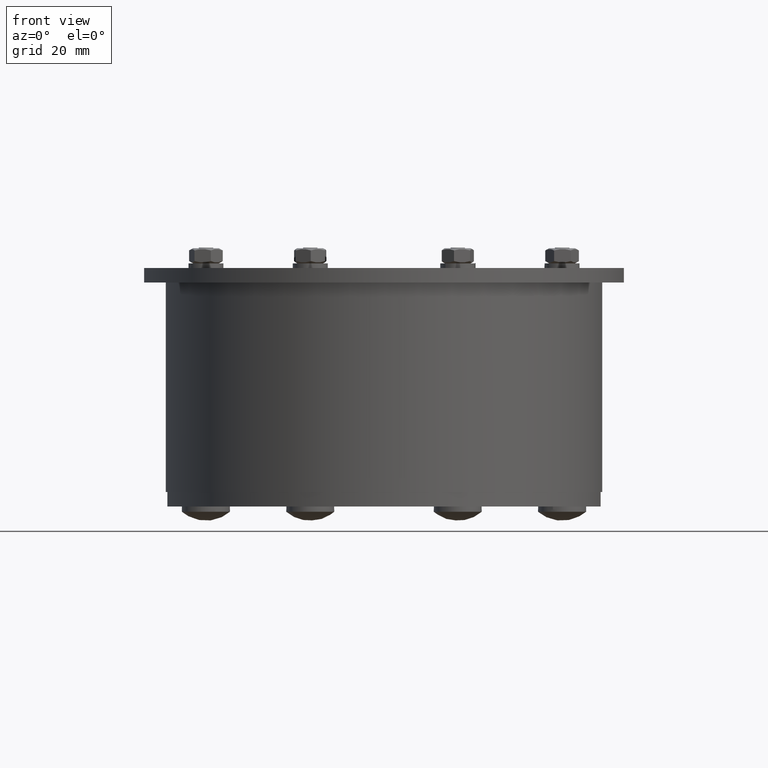
[diagram: clean part render]
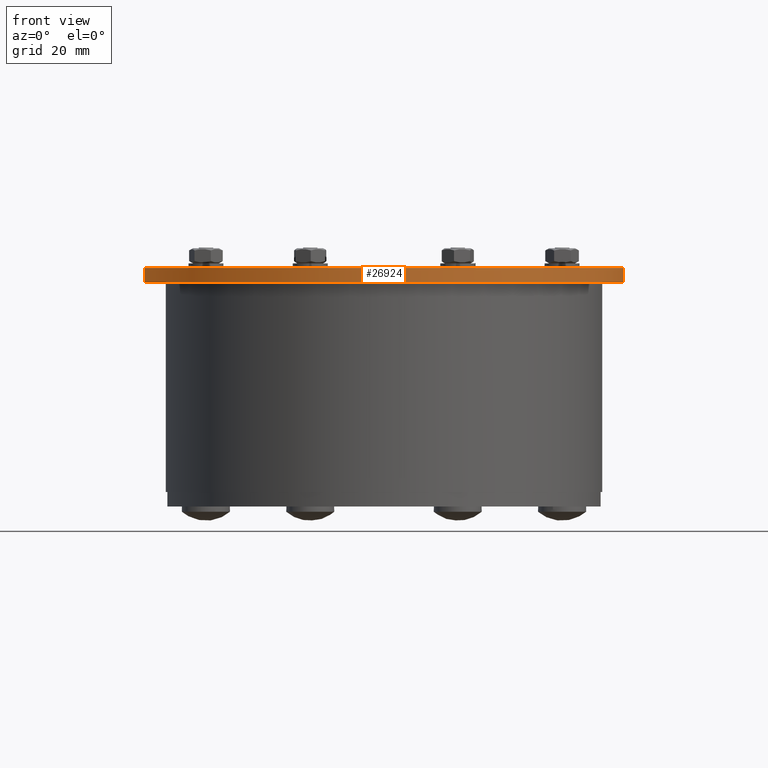
[diagram: same view with one face highlighted and labeled with its STEP entity id]
A machine part, front view. The second image highlights one B-rep face of the part: STEP entity #26924.
In plain terms, the highlighted cylindrical surface (partial cylindrical patch) has radius 82.5 mm, axis along (0, 0, -1).
Its self-contained STEP definition (entity closure, byte-faithful):
#26857=CARTESIAN_POINT('',(82.4426906383448,3.074534161490685,-5.0));
#26858=VERTEX_POINT('',#26857);
#26866=CARTESIAN_POINT('',(82.4426906383448,3.074534161490685,0.0));
#26867=VERTEX_POINT('',#26866);
#26868=CARTESIAN_POINT('',(82.442690638344786,3.074534161490684,-5.0));
#26869=DIRECTION('',(0.0,0.0,1.0));
#26870=VECTOR('',#26869,5.0);
#26871=LINE('',#26868,#26870);
#26872=EDGE_CURVE('',#26858,#26867,#26871,.T.);
#26892=CARTESIAN_POINT('',(0.0,0.0,0.0));
#26893=DIRECTION('',(0.0,0.0,-1.0));
#26894=DIRECTION('',(0.999926535409833,0.012121212121212,0.0));
#26895=AXIS2_PLACEMENT_3D('',#26892,#26893,#26894);
#26896=CYLINDRICAL_SURFACE('',#26895,82.499999999999972);
#26897=ORIENTED_EDGE('',*,*,#26872,.F.);
#26898=CARTESIAN_POINT('',(-82.4426906383448,3.074534161490687,-5.0));
#26899=VERTEX_POINT('',#26898);
#26900=CARTESIAN_POINT('',(0.0,0.0,-5.0));
#26901=DIRECTION('',(0.0,0.0,-1.0));
#26902=DIRECTION('',(0.999926535409833,0.012121212121212,0.0));
#26903=AXIS2_PLACEMENT_3D('',#26900,#26901,#26902);
#26904=CIRCLE('',#26903,82.499999999999972);
#26905=EDGE_CURVE('',#26899,#26858,#26904,.T.);
#26906=ORIENTED_EDGE('',*,*,#26905,.F.);
#26907=CARTESIAN_POINT('',(-82.4426906383448,3.074534161490687,0.0));
#26908=VERTEX_POINT('',#26907);
#26909=CARTESIAN_POINT('',(-82.442690638344786,3.074534161490687,0.0));
#26910=DIRECTION('',(0.0,0.0,-1.0));
#26911=VECTOR('',#26910,5.0);
#26912=LINE('',#26909,#26911);
#26913=EDGE_CURVE('',#26908,#26899,#26912,.T.);
#26914=ORIENTED_EDGE('',*,*,#26913,.F.);
#26915=CARTESIAN_POINT('',(0.0,0.0,0.0));
#26916=DIRECTION('',(0.0,0.0,1.0));
#26917=DIRECTION('',(0.999926535409833,0.012121212121212,0.0));
#26918=AXIS2_PLACEMENT_3D('',#26915,#26916,#26917);
#26919=CIRCLE('',#26918,82.499999999999972);
#26920=EDGE_CURVE('',#26867,#26908,#26919,.T.);
#26921=ORIENTED_EDGE('',*,*,#26920,.F.);
#26922=EDGE_LOOP('',(#26897,#26906,#26914,#26921));
#26923=FACE_OUTER_BOUND('',#26922,.T.);
#26924=ADVANCED_FACE('',(#26923),#26896,.T.);